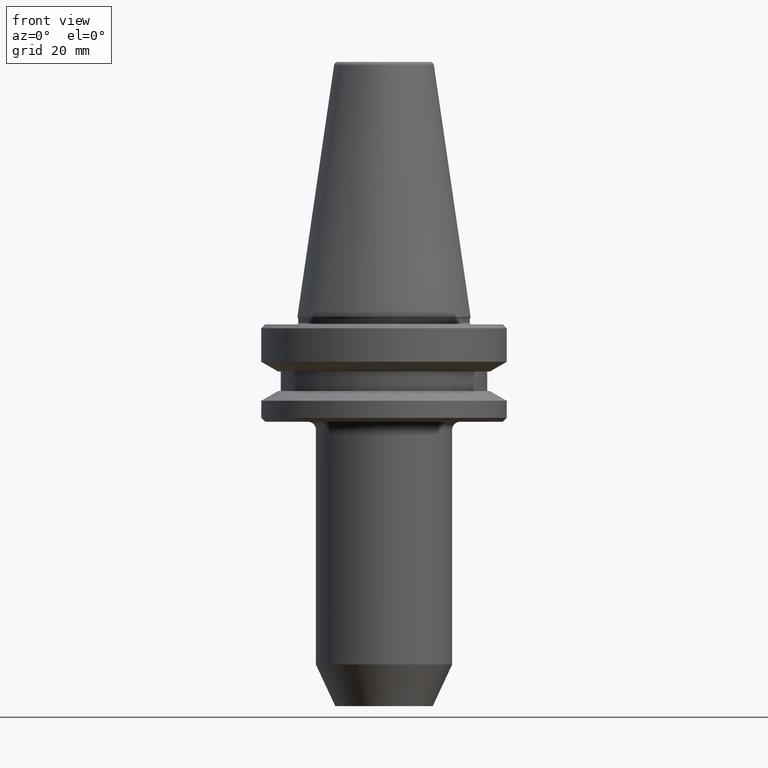
[diagram: clean part render]
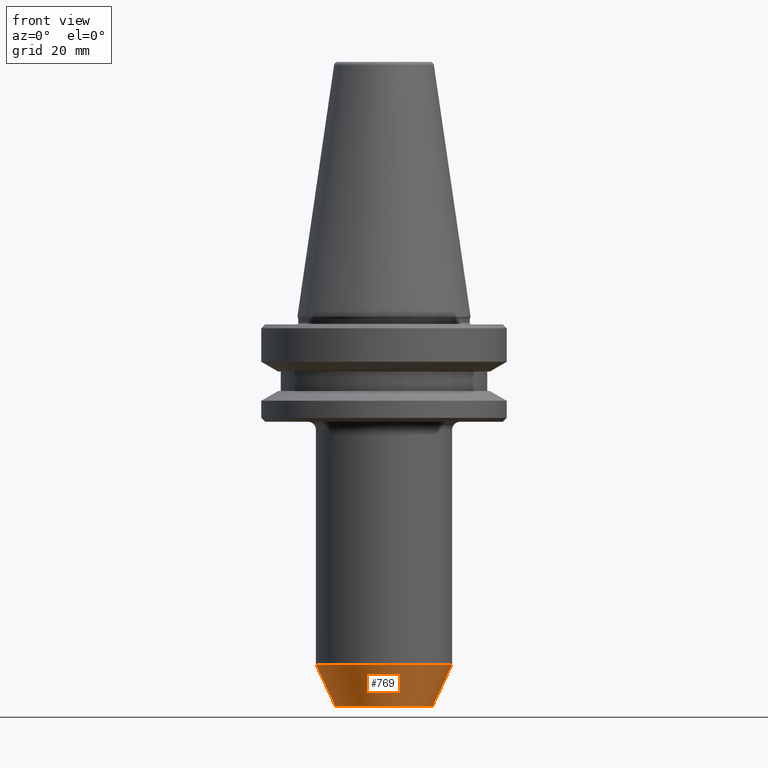
[diagram: same view with one face highlighted and labeled with its STEP entity id]
A machine part, front view. The second image highlights one B-rep face of the part: STEP entity #769.
In plain terms, the highlighted conical surface has half-angle 25 deg.
Its self-contained STEP definition (entity closure, byte-faithful):
#20 = VERTEX_POINT ( 'NONE', #354 ) ;
#87 = CIRCLE ( 'NONE', #925, 12.49999999999817900 ) ;
#104 = DIRECTION ( 'NONE',  ( 0.4226182617407009400, 0.0000000000000000000, 0.9063077870366492700 ) ) ;
#107 = AXIS2_PLACEMENT_3D ( 'NONE', #551, #372, #456 ) ;
#138 = ORIENTED_EDGE ( 'NONE', *, *, #397, .T. ) ;
#182 = CONICAL_SURFACE ( 'NONE', #202, 12.49999999999817900, 0.4363323129985840500 ) ;
#184 = DIRECTION ( 'NONE',  ( 1.000000000000000000, 0.0000000000000000000, 0.0000000000000000000 ) ) ;
#202 = AXIS2_PLACEMENT_3D ( 'NONE', #341, #833, #184 ) ;
#212 = ORIENTED_EDGE ( 'NONE', *, *, #459, .T. ) ;
#224 = CARTESIAN_POINT ( 'NONE',  ( 12.49999999999817900, 0.0000000000000000000, -100.0000000001122700 ) ) ;
#251 = LINE ( 'NONE', #224, #417 ) ;
#282 = CARTESIAN_POINT ( 'NONE',  ( -12.49999999999817900, 1.530808498933968500E-015, -100.0000000001122700 ) ) ;
#304 = VERTEX_POINT ( 'NONE', #563 ) ;
#305 = CIRCLE ( 'NONE', #107, 17.49999999999807400 ) ;
#330 = EDGE_CURVE ( 'NONE', #20, #705, #645, .T. ) ;
#341 = CARTESIAN_POINT ( 'NONE',  ( 0.0000000000000000000, 0.0000000000000000000, -100.0000000001122700 ) ) ;
#354 = CARTESIAN_POINT ( 'NONE',  ( -12.49999999999817900, 1.836970198720800400E-015, -100.0000000001122700 ) ) ;
#372 = DIRECTION ( 'NONE',  ( -0.0000000000000000000, -0.0000000000000000000, 1.000000000000000000 ) ) ;
#378 = DIRECTION ( 'NONE',  ( 1.000000000000000000, 0.0000000000000000000, 0.0000000000000000000 ) ) ;
#397 = EDGE_CURVE ( 'NONE', #429, #304, #251, .T. ) ;
#402 = DIRECTION ( 'NONE',  ( -0.0000000000000000000, -0.0000000000000000000, 1.000000000000000000 ) ) ;
#417 = VECTOR ( 'NONE', #104, 1000.000000000000000 ) ;
#425 = CARTESIAN_POINT ( 'NONE',  ( 12.49999999999817900, 0.0000000000000000000, -100.0000000001122700 ) ) ;
#429 = VERTEX_POINT ( 'NONE', #425 ) ;
#444 = CARTESIAN_POINT ( 'NONE',  ( 0.0000000000000000000, 0.0000000000000000000, -100.0000000001122700 ) ) ;
#456 = DIRECTION ( 'NONE',  ( 1.000000000000000000, 0.0000000000000000000, 0.0000000000000000000 ) ) ;
#459 = EDGE_CURVE ( 'NONE', #20, #429, #87, .T. ) ;
#510 = EDGE_LOOP ( 'NONE', ( #847, #212, #138, #908 ) ) ;
#544 = DIRECTION ( 'NONE',  ( -0.4226182617407009400, 5.175581015019677300E-017, 0.9063077870366492700 ) ) ;
#551 = CARTESIAN_POINT ( 'NONE',  ( 0.0000000000000000000, 0.0000000000000000000, -89.27746539756474000 ) ) ;
#563 = CARTESIAN_POINT ( 'NONE',  ( 17.49999999999807400, 0.0000000000000000000, -89.27746539756474000 ) ) ;
#626 = VECTOR ( 'NONE', #544, 1000.000000000000000 ) ;
#645 = LINE ( 'NONE', #282, #626 ) ;
#705 = VERTEX_POINT ( 'NONE', #1041 ) ;
#745 = EDGE_CURVE ( 'NONE', #705, #304, #305, .T. ) ;
#769 = ADVANCED_FACE ( 'NONE', ( #1039 ), #182, .T. ) ;
#833 = DIRECTION ( 'NONE',  ( -0.0000000000000000000, -0.0000000000000000000, 1.000000000000000000 ) ) ;
#847 = ORIENTED_EDGE ( 'NONE', *, *, #330, .F. ) ;
#908 = ORIENTED_EDGE ( 'NONE', *, *, #745, .F. ) ;
#925 = AXIS2_PLACEMENT_3D ( 'NONE', #444, #402, #378 ) ;
#1039 = FACE_OUTER_BOUND ( 'NONE', #510, .T. ) ;
#1041 = CARTESIAN_POINT ( 'NONE',  ( -17.49999999999807400, 2.143131898507632400E-015, -89.27746539756474000 ) ) ;